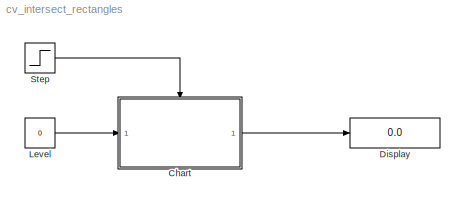
MODEL cv_intersect_rectangles
KIND model
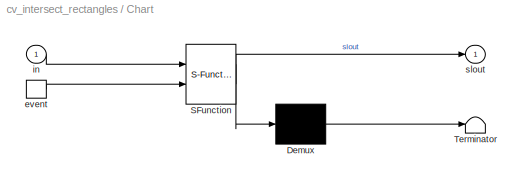
BLOCK [SubSystem] Chart
  MaskDescription = Stateflow diagram
  MaskDisplay = plot(sf('Private','sfblk','xIcon'),sf('Private','sfblk','yIcon'));text(0.5,0,sf('Private', 'sfblk', 'tIcon'),'HorizontalAl','Center','VerticalAl','Bottom');
  MaskIconFrame = off
  MaskIconOpaque = off
  MaskIconRotate = none
  MaskIconUnits = autoscale
  MaskSelfModifiable = on
  MaskType = Stateflow
  MinAlgLoopOccurrences = off
  Ports = [1, 1, 0, 1]
  PropExecContextAcrossSSBoundary = on
  RTWSystemCode = Auto
  TreatAsAtomicUnit = off
BLOCK [Demux] Chart/ Demux 
  Outputs = 1
  Ports = [1, 1]
BLOCK [S-Function] Chart/ SFunction 
  FunctionName = sf_sfun
  PortCounts = [2 2]
  Ports = [2, 2]
  Tag = Stateflow S-Function cv_intersect_rectangles 1
BLOCK [Terminator] Chart/ Terminator 
BLOCK [TriggerPort] Chart/event
  Ports = [0, 1]
  ShowOutputPort = on
  StatesWhenEnabling = reset
BLOCK [Inport] Chart/in
  IconDisplay = Port number
  LatchInput = off
  Port = 1
BLOCK [Outport] Chart/slout
  IconDisplay = Port number
BLOCK [Display] Display
  Decimation = 1
  Ports = [1]
BLOCK [Constant] Level
  Value = 0
BLOCK [Step] Step
  SampleTime = 0
LINE Chart/ Demux :1 -> Chart/ Terminator :1
LINE Chart/ SFunction :1 -> Chart/ Demux :1
LINE Chart/ SFunction :2 -> Chart/slout:1
LINE Chart/event:1 -> Chart/ SFunction :2
LINE Chart/in:1 -> Chart/ SFunction :1
LINE Chart:1 -> Display:1
LINE Level:1 -> Chart:1
LINE Step:1 -> Chart:trigger
CHART Chart states=2 transitions=1
  STATE_LABEL 'out = rct_intersect(rect1,rect2)'
  STATE_LABEL 'out = run(level)'
